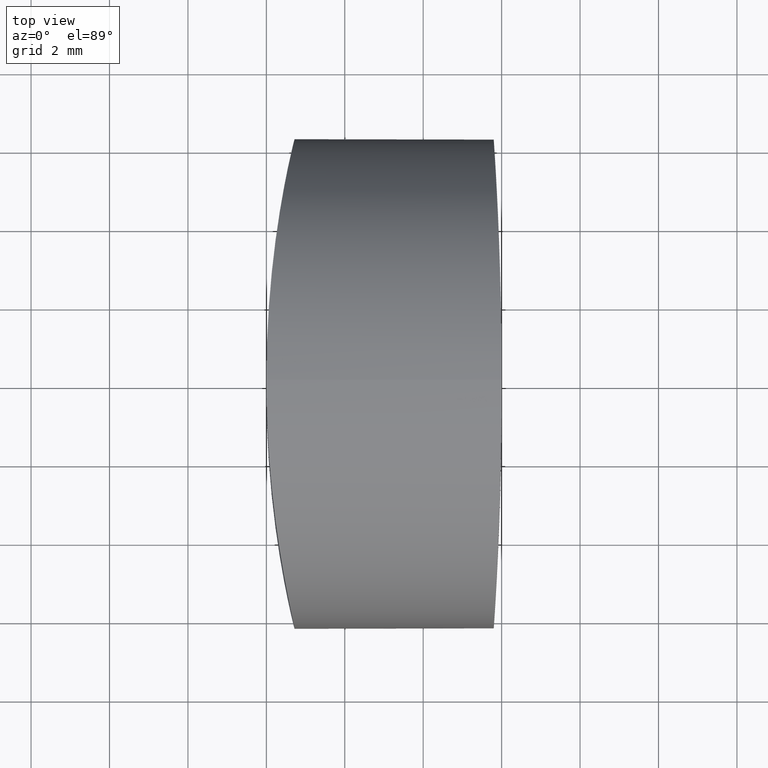
[diagram: clean part render]
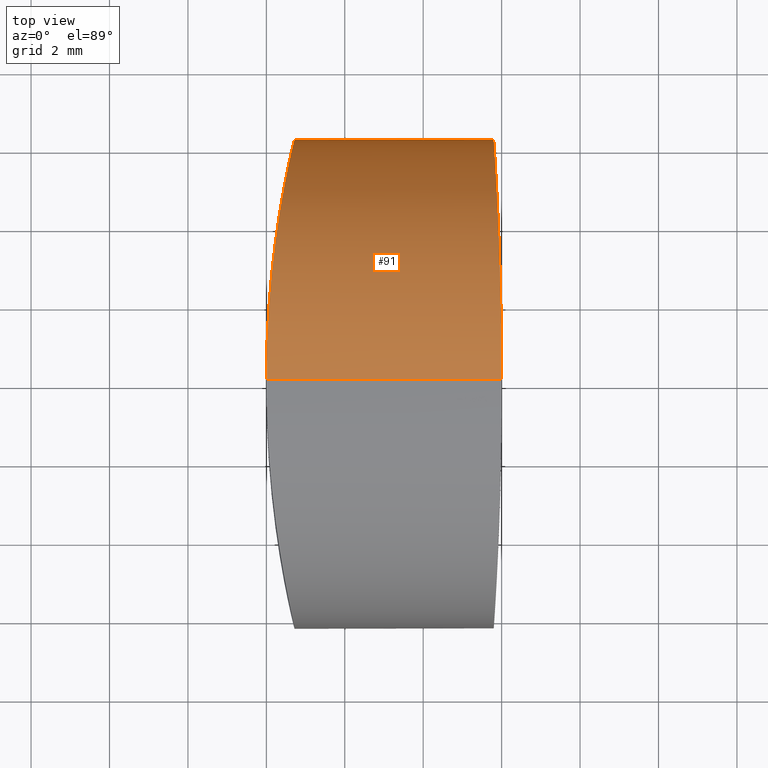
[diagram: same view with one face highlighted and labeled with its STEP entity id]
A machine part, top view. The second image highlights one B-rep face of the part: STEP entity #91.
In plain terms, the highlighted cylindrical surface (partial cylindrical patch) has radius 6.25 mm, axis along (-1, 0, 0).
Its self-contained STEP definition (entity closure, byte-faithful):
#1 = CARTESIAN_POINT ( 'NONE',  ( 0.6472385544903326293, 5.920599341808515881, 4.237240586915103968 ) ) ;
#4 = CARTESIAN_POINT ( 'NONE',  ( 0.5405423726681658492, 5.420672087430262742, 9.388040450260557890 ) ) ;
#6 = CARTESIAN_POINT ( 'NONE',  ( 0.04785147353086356692, 1.630484401178633469, 0.2129529637459151026 ) ) ;
#8 = CARTESIAN_POINT ( 'NONE',  ( 5.911567105807118416, 4.129710508305659111, 1.541077639020869805 ) ) ;
#16 = CARTESIAN_POINT ( 'NONE',  ( 6.000000000000032863, -4.438766178463325818E-15, 0.000000000000000000 ) ) ;
#20 = CARTESIAN_POINT ( 'NONE',  ( 5.806612813290890074, 6.090527116705958477, 7.667533264475713928 ) ) ;
#21 = AXIS2_PLACEMENT_3D ( 'NONE', #33, #89, #194 ) ;
#26 = CARTESIAN_POINT ( 'NONE',  ( 12.50000000000000000, -4.438766178463325818E-15, 0.000000000000000000 ) ) ;
#31 = CARTESIAN_POINT ( 'NONE',  ( 0.5808315943778648016, 5.614066538103534398, 9.026703017034655829 ) ) ;
#33 = CARTESIAN_POINT ( 'NONE',  ( 12.50000000000000000, -5.204170427930421283E-15, 6.250000000000000000 ) ) ;
#34 = CARTESIAN_POINT ( 'NONE',  ( 0.7126994427713121416, 6.209258220857615918, 7.073137083001558523 ) ) ;
#38 = CARTESIAN_POINT ( 'NONE',  ( 0.3120574484777308699, 4.133754141985728658, 1.544749490529447877 ) ) ;
#43 = CARTESIAN_POINT ( 'NONE',  ( 6.000000000000032863, -5.204170427930421283E-15, 12.50000000000000000 ) ) ;
#45 = ORIENTED_EDGE ( 'NONE', *, *, #74, .F. ) ;
#46 = DIRECTION ( 'NONE',  ( -1.000000000000000000, 0.000000000000000000, 0.000000000000000000 ) ) ;
#48 = CARTESIAN_POINT ( 'NONE',  ( 0.1382196149547258446, 2.774759445840226046, 11.86522035354666471 ) ) ;
#49 = CARTESIAN_POINT ( 'NONE',  ( 5.821475028554874420, 5.852442620526291606, 8.453025596376225081 ) ) ;
#50 = EDGE_CURVE ( 'NONE', #265, #199, #84, .T. ) ;
#53 = CARTESIAN_POINT ( 'NONE',  ( 5.836178944746623465, 5.606794147255378391, 3.480858874153593963 ) ) ;
#58 = CARTESIAN_POINT ( 'NONE',  ( 0.1781450967523682816, 3.138282326008580814, 0.8294647198663238630 ) ) ;
#64 = CARTESIAN_POINT ( 'NONE',  ( -4.794358695361155814E-15, -2.552071241603616280E-31, 3.064935224722401656E-16 ) ) ;
#65 = CARTESIAN_POINT ( 'NONE',  ( 0.07401072818544747467, 2.022082766157354605, 0.3326021270122040407 ) ) ;
#68 = CARTESIAN_POINT ( 'NONE',  ( 5.986607244030440533, 1.615473711900098808, 0.2089082601465505062 ) ) ;
#71 = CARTESIAN_POINT ( 'NONE',  ( 5.796333507372480653, 6.249998923542263718, 6.662802383870022993 ) ) ;
#74 = EDGE_CURVE ( 'NONE', #199, #269, #170, .T. ) ;
#77 = CARTESIAN_POINT ( 'NONE',  ( 5.949143905229992590, 3.129583509520057927, 11.66387015364975177 ) ) ;
#81 = ORIENTED_EDGE ( 'NONE', *, *, #200, .T. ) ;
#84 = B_SPLINE_CURVE_WITH_KNOTS ( 'NONE', 3,
 ( #147, #176, #308, #333, #68, #304, #93, #254, #197, #106, #8, #287, #196, #258, #260, #53, #124, #121, #103, #209, #233, #71, #335, #20, #206, #313, #49, #132, #222, #225, #305, #315, #129, #178, #77, #290, #167, #95, #169, #280, #279, #43 ),
 .UNSPECIFIED., .F., .F.,
 ( 4, 2, 2, 2, 2, 2, 2, 2, 2, 2, 2, 2, 2, 2, 2, 2, 2, 2, 2, 2, 4 ),
 ( 0.000000000000000000, 0.001220760980211511122, 0.001831141470317267225, 0.002441521960423023111, 0.003662282940634532715, 0.004883043920846042753, 0.006103804901057553224, 0.006714185391163309327, 0.007324565881269064563, 0.008545326861480576769, 0.009766087841692087240, 0.01098684882190359771, 0.01159722931200935642, 0.01220760980211511165, 0.01342837078232661865, 0.01464913176253812392, 0.01586989274274963266, 0.01648027323285538442, 0.01709065372296113619, 0.01831141470317263625, 0.01953217568338413979 ),
 .UNSPECIFIED. ) ;
#89 = DIRECTION ( 'NONE',  ( -1.000000000000000000, 0.000000000000000000, 0.000000000000000000 ) ) ;
#90 = CARTESIAN_POINT ( 'NONE',  ( 0.6318028585930105523, 5.850646397211318295, 4.042219238649437330 ) ) ;
#91 = ADVANCED_FACE ( 'NONE', ( #281 ), #270, .T. ) ;
#93 = CARTESIAN_POINT ( 'NONE',  ( 5.974905582907695134, 2.203018005822336978, 0.3975544915892444964 ) ) ;
#95 = CARTESIAN_POINT ( 'NONE',  ( 5.979448297765532772, 2.021566305979889400, 12.17800582869768178 ) ) ;
#100 = CARTESIAN_POINT ( 'NONE',  ( 6.000000000000032863, -5.204170427930421283E-15, 12.50000000000000000 ) ) ;
#103 = CARTESIAN_POINT ( 'NONE',  ( 5.809324090560597398, 6.048136398072538888, 4.621482525096241467 ) ) ;
#105 = CARTESIAN_POINT ( 'NONE',  ( 0.009377698292468660685, 0.8211082037945944823, 12.45924521805281593 ) ) ;
#106 = CARTESIAN_POINT ( 'NONE',  ( 5.925037275768164413, 3.808234963805503082, 1.277431339923827291 ) ) ;
#108 = CARTESIAN_POINT ( 'NONE',  ( -4.184501590779804551E-15, 0.000000000000000000, 12.50000000000000000 ) ) ;
#112 = EDGE_LOOP ( 'NONE', ( #189, #81, #162, #45 ) ) ;
#117 = CARTESIAN_POINT ( 'NONE',  ( 0.1384750344614404383, 2.776920819506312643, 0.6360383530676991803 ) ) ;
#121 = CARTESIAN_POINT ( 'NONE',  ( 5.816925134056868174, 5.928009089340775084, 4.228443051414411791 ) ) ;
#124 = CARTESIAN_POINT ( 'NONE',  ( 5.831022604608366855, 5.693963033971735754, 3.664916629452011243 ) ) ;
#129 = CARTESIAN_POINT ( 'NONE',  ( 5.924625625390091521, 3.818741430251566094, 11.21471125391179413 ) ) ;
#132 = CARTESIAN_POINT ( 'NONE',  ( 5.835638474226827022, 5.617387589916582158, 9.020393886077801682 ) ) ;
#137 = VERTEX_POINT ( 'NONE', #263 ) ;
#139 = CARTESIAN_POINT ( 'NONE',  ( 0.7223386385820601552, 6.249990742841045943, 5.835721805777372317 ) ) ;
#141 = CARTESIAN_POINT ( 'NONE',  ( 0.6465415843229564974, 5.917450417880172786, 8.271927394409370748 ) ) ;
#142 = CARTESIAN_POINT ( 'NONE',  ( 0.03657104403241982771, 1.429575201736944301, 0.1622006590108722723 ) ) ;
#144 = VECTOR ( 'NONE', #328, 1000.000000000000000 ) ;
#147 = CARTESIAN_POINT ( 'NONE',  ( 6.000000000000032863, -4.438766178463325818E-15, 0.000000000000000000 ) ) ;
#153 = CARTESIAN_POINT ( 'NONE',  ( 0.1775704797822855174, 3.133076503569387494, 11.67333947537820649 ) ) ;
#161 = CARTESIAN_POINT ( 'NONE',  ( 0.6848341147528792527, 6.087826902517444516, 7.679457653328651823 ) ) ;
#162 = ORIENTED_EDGE ( 'NONE', *, *, #306, .F. ) ;
#165 = CARTESIAN_POINT ( 'NONE',  ( 0.4523504849553865448, 4.963701796864475213, 10.07003248922329064 ) ) ;
#166 = CARTESIAN_POINT ( 'NONE',  ( 0.6732828658577496572, 6.037081072751806055, 7.880356389675340800 ) ) ;
#167 = CARTESIAN_POINT ( 'NONE',  ( 5.965371937166968230, 2.585090990553882584, 11.94395955633633655 ) ) ;
#169 = CARTESIAN_POINT ( 'NONE',  ( 5.987035242229682197, 1.628528162335880713, 12.29813343792502600 ) ) ;
#170 = LINE ( 'NONE', #224, #144 ) ;
#173 = CARTESIAN_POINT ( 'NONE',  ( 0.07331681270003116702, 2.012758873107048707, 12.17060025993517947 ) ) ;
#175 = CARTESIAN_POINT ( 'NONE',  ( -4.183213382173211383E-15, 0.4141460507248768685, 12.50000000000000178 ) ) ;
#176 = CARTESIAN_POINT ( 'NONE',  ( 6.000000000000032863, 0.4127875906288794861, 3.811648262644350293E-17 ) ) ;
#178 = CARTESIAN_POINT ( 'NONE',  ( 5.943178669587195984, 3.306903936655284149, 11.55745205726753078 ) ) ;
#186 = CARTESIAN_POINT ( 'NONE',  ( 0.4058876864728979683, 4.707701709501085574, 2.119037608786832116 ) ) ;
#188 = CARTESIAN_POINT ( 'NONE',  ( -4.788700767302186967E-15, 0.4141244357197649828, 6.780028168911088930E-16 ) ) ;
#189 = ORIENTED_EDGE ( 'NONE', *, *, #50, .F. ) ;
#192 = CARTESIAN_POINT ( 'NONE',  ( 0.009381683524963947349, 0.8232534142091717522, 0.04075704209695963504 ) ) ;
#194 = DIRECTION ( 'NONE',  ( 0.000000000000000000, 0.000000000000000000, 1.000000000000000000 ) ) ;
#195 = CARTESIAN_POINT ( 'NONE',  ( 0.4536088994688753373, 4.970434865613556852, 2.439026170901297697 ) ) ;
#196 = CARTESIAN_POINT ( 'NONE',  ( 5.871810116764510035, 4.964714265286636952, 2.431262372017350071 ) ) ;
#197 = CARTESIAN_POINT ( 'NONE',  ( 5.949589200328775362, 3.129179155180217276, 0.8243820228928684379 ) ) ;
#199 = VERTEX_POINT ( 'NONE', #100 ) ;
#200 = EDGE_CURVE ( 'NONE', #265, #137, #256, .T. ) ;
#206 = CARTESIAN_POINT ( 'NONE',  ( 5.809753105704046128, 6.041089017330381949, 7.865483799752884586 ) ) ;
#209 = CARTESIAN_POINT ( 'NONE',  ( 5.799000971098884349, 6.209504772456537758, 5.428980185016071935 ) ) ;
#214 = CARTESIAN_POINT ( 'NONE',  ( 0.03615389766906514785, 1.421277128934611333, 12.33967015016659374 ) ) ;
#217 = CARTESIAN_POINT ( 'NONE',  ( 0.5810800151420899562, 5.615273520632134030, 3.475357696917747319 ) ) ;
#220 = CARTESIAN_POINT ( 'NONE',  ( 0.4055019766570012729, 4.705499837181553069, 10.38347242607515319 ) ) ;
#221 = VECTOR ( 'NONE', #46, 1000.000000000000000 ) ;
#222 = CARTESIAN_POINT ( 'NONE',  ( 5.846826527566751253, 5.425615968170429682, 9.379182439852677078 ) ) ;
#224 = CARTESIAN_POINT ( 'NONE',  ( 12.50000000000000000, -5.204170427930421283E-15, 12.50000000000000000 ) ) ;
#225 = CARTESIAN_POINT ( 'NONE',  ( 5.871398397257435953, 4.972568088410991294, 10.05823554708279133 ) ) ;
#233 = CARTESIAN_POINT ( 'NONE',  ( 5.796333366913491325, 6.250001076415261814, 5.837230212810717411 ) ) ;
#245 = CARTESIAN_POINT ( 'NONE',  ( 0.7126964746867769929, 6.209228603409623126, 5.428782266703900738 ) ) ;
#249 = CARTESIAN_POINT ( 'NONE',  ( 0.2642002175140314990, 3.811195025877566422, 11.22026879727245863 ) ) ;
#254 = CARTESIAN_POINT ( 'NONE',  ( 5.960763360669400157, 2.770388991762471775, 0.6326098688181184260 ) ) ;
#256 = LINE ( 'NONE', #26, #221 ) ;
#258 = CARTESIAN_POINT ( 'NONE',  ( 5.853242027680242821, 5.307455462194799800, 2.943101495563196668 ) ) ;
#260 = CARTESIAN_POINT ( 'NONE',  ( 5.847270737039256261, 5.413873622452935130, 3.120422459075444799 ) ) ;
#263 = CARTESIAN_POINT ( 'NONE',  ( -4.794358695361155814E-15, -2.552071241603616280E-31, 3.064935224722401656E-16 ) ) ;
#265 = VERTEX_POINT ( 'NONE', #16 ) ;
#268 = CARTESIAN_POINT ( 'NONE',  ( 0.3116681383042346209, 4.131214010508622358, 10.95748274709706571 ) ) ;
#269 = VERTEX_POINT ( 'NONE', #341 ) ;
#270 = CYLINDRICAL_SURFACE ( 'NONE', #21, 6.250000000000000000 ) ;
#273 = CARTESIAN_POINT ( 'NONE',  ( 0.5411169698425439822, 5.423432351233826942, 3.117089881440517463 ) ) ;
#276 = CARTESIAN_POINT ( 'NONE',  ( 0.6739394782821751528, 6.039985969855218961, 4.630349881876520968 ) ) ;
#277 = B_SPLINE_CURVE_WITH_KNOTS ( 'NONE', 3,
 ( #108, #175, #105, #214, #310, #173, #286, #48, #153, #249, #268, #220, #165, #4, #31, #295, #141, #166, #161, #34, #325, #139, #245, #296, #276, #1, #90, #217, #273, #195, #186, #38, #324, #58, #117, #301, #65, #6, #142, #192, #188, #64 ),
 .UNSPECIFIED., .F., .F.,
 ( 4, 2, 2, 2, 2, 2, 2, 2, 2, 2, 2, 2, 2, 2, 2, 2, 2, 2, 2, 2, 4 ),
 ( -0.009795531013975435075, -0.008571072429431786030, -0.007958843137159962375, -0.007346613844888136985, -0.006122155260344488807, -0.004897696675800840629, -0.003673238091257192452, -0.002448779506713544274, -0.001836550214441718884, -0.001224320922169890025, 1.376623737642246326E-07, 0.001224596246917420209, 0.001836825539189249068, 0.002449054831461076193, 0.003673513416004735646, 0.004897972000548393365, 0.006122430585092049349, 0.007346889169635703598, 0.007959118461907534192, 0.008571347754179357847, 0.009795806338723012097 ),
 .UNSPECIFIED. ) ;
#279 = CARTESIAN_POINT ( 'NONE',  ( 6.000000000000031974, 0.4127848848819660188, 12.49999999999999645 ) ) ;
#280 = CARTESIAN_POINT ( 'NONE',  ( 5.997338208213556676, 0.8210331944726709796, 12.45950292310438279 ) ) ;
#281 = FACE_OUTER_BOUND ( 'NONE', #112, .T. ) ;
#286 = CARTESIAN_POINT ( 'NONE',  ( 0.08843537728444177126, 2.207810633956613255, 12.10063625641512530 ) ) ;
#287 = CARTESIAN_POINT ( 'NONE',  ( 5.885016830392030052, 4.706034531278874056, 2.116998950574742633 ) ) ;
#290 = CARTESIAN_POINT ( 'NONE',  ( 5.960222631026611317, 2.769148189137295546, 11.85679064084233403 ) ) ;
#295 = CARTESIAN_POINT ( 'NONE',  ( 0.6313120779358907253, 5.848395608795871503, 8.463616834003325096 ) ) ;
#296 = CARTESIAN_POINT ( 'NONE',  ( 0.6852518642520063485, 6.089655521369667923, 4.828662519043446011 ) ) ;
#301 = CARTESIAN_POINT ( 'NONE',  ( 0.08892804898556742887, 2.213787943240112632, 0.4016684776661895717 ) ) ;
#304 = CARTESIAN_POINT ( 'NONE',  ( 5.979198856566738662, 2.007962246959806851, 0.3277848453513630966 ) ) ;
#305 = CARTESIAN_POINT ( 'NONE',  ( 5.884874420424371699, 4.708922839733576282, 10.37970982253160201 ) ) ;
#306 = EDGE_CURVE ( 'NONE', #269, #137, #277, .T. ) ;
#308 = CARTESIAN_POINT ( 'NONE',  ( 5.997339634076558568, 0.8186593033643769779, 0.04049256479721155544 ) ) ;
#310 = CARTESIAN_POINT ( 'NONE',  ( 0.04719977522106353490, 1.619608645218747256, 12.28999781088936771 ) ) ;
#313 = CARTESIAN_POINT ( 'NONE',  ( 5.817174602415966511, 5.922212247244154959, 8.257970747088984709 ) ) ;
#315 = CARTESIAN_POINT ( 'NONE',  ( 5.911424642850639621, 4.133003739400661125, 10.95603204610621795 ) ) ;
#324 = CARTESIAN_POINT ( 'NONE',  ( 0.2654584982140955618, 3.820321690520747993, 1.286517264878582978 ) ) ;
#325 = CARTESIAN_POINT ( 'NONE',  ( 0.7223429753559525990, 6.250009254037196982, 6.663998831226075836 ) ) ;
#328 = DIRECTION ( 'NONE',  ( -1.000000000000000000, 0.000000000000000000, 0.000000000000000000 ) ) ;
#333 = CARTESIAN_POINT ( 'NONE',  ( 5.989741562635338745, 1.417522383347145976, 0.1594703265302315487 ) ) ;
#335 = CARTESIAN_POINT ( 'NONE',  ( 5.798999773165147253, 6.209505593986315297, 7.068672546966005221 ) ) ;
#341 = CARTESIAN_POINT ( 'NONE',  ( -4.184501590779804551E-15, 0.000000000000000000, 12.50000000000000000 ) ) ;